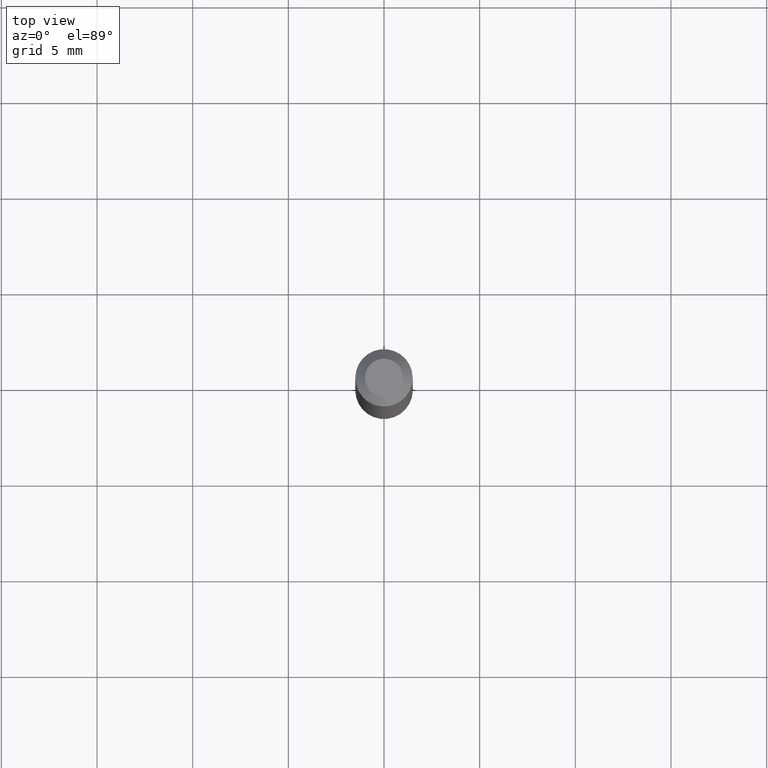
[diagram: clean part render]
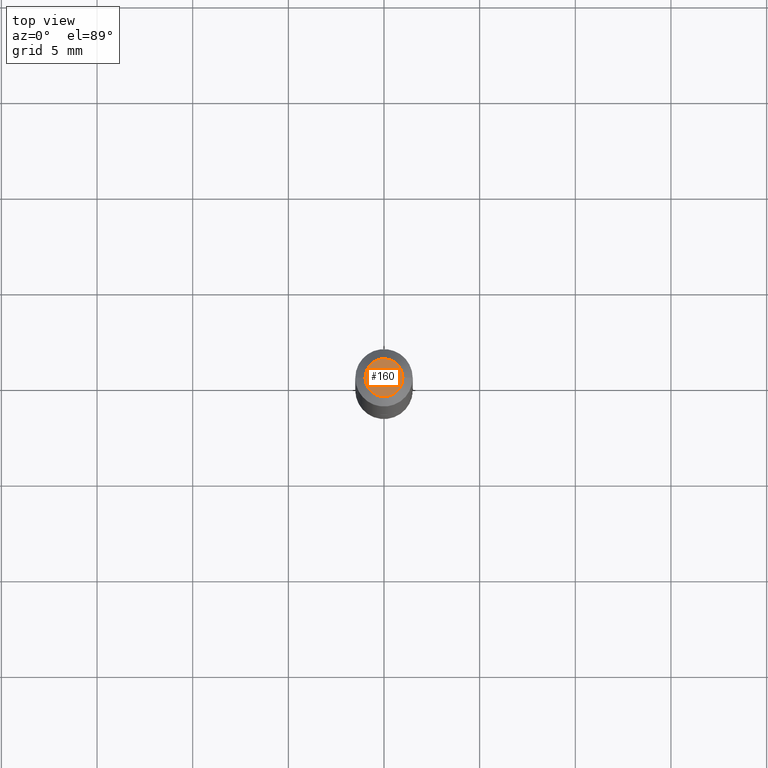
[diagram: same view with one face highlighted and labeled with its STEP entity id]
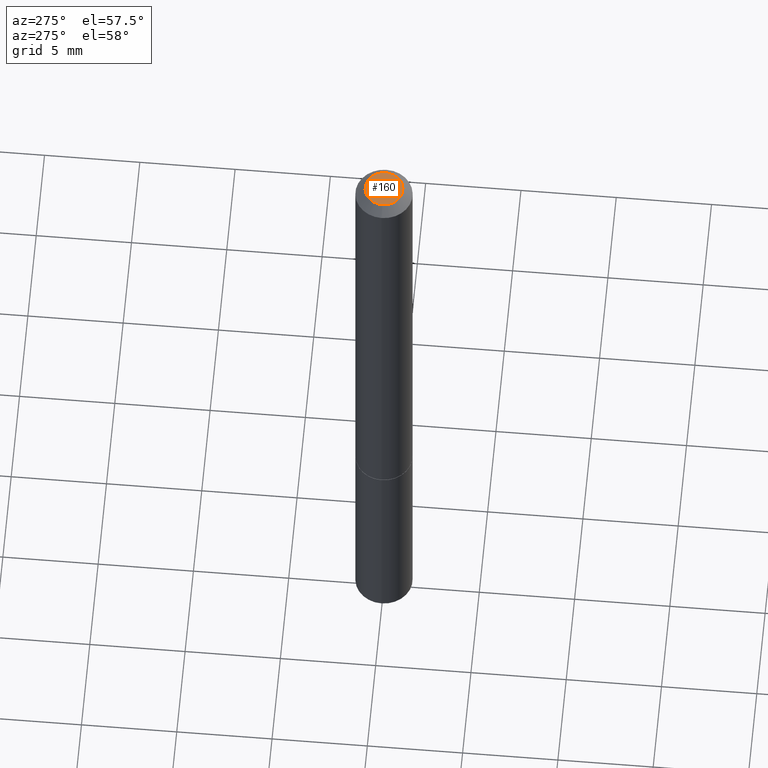
[diagram: same view with one face highlighted and labeled with its STEP entity id]
A machine part, top view. The second image highlights one B-rep face of the part: STEP entity #160.
A second angle (auxiliary view) of the same face is appended — the face is thin or edge-on in the first view.
In plain terms, the highlighted planar face has unit normal (0, -0, -1).
Its self-contained STEP definition (entity closure, byte-faithful):
#29 = CARTESIAN_POINT ( 'NONE',  ( -0.03904999999999982097, 3.075995059520783951E-16, -5.549066237130737733E-17 ) ) ;
#34 = DIRECTION ( 'NONE',  ( -1.000000000000000000, 6.982962677686265922E-15, -4.876176775795935793E-29 ) ) ;
#40 = VERTEX_POINT ( 'NONE', #118 ) ;
#55 = CARTESIAN_POINT ( 'NONE',  ( 1.357006838635785746E-45, -1.937446121494581442E-31, -5.549066237130534971E-17 ) ) ;
#58 = AXIS2_PLACEMENT_3D ( 'NONE', #62, #284, #34 ) ;
#62 = CARTESIAN_POINT ( 'NONE',  ( 2.726846925636474363E-16, 0.03904999999999982097, -1.640876774674768860E-16 ) ) ;
#73 = CIRCLE ( 'NONE', #127, 0.03904999999999982097 ) ;
#89 = CARTESIAN_POINT ( 'NONE',  ( 1.357006838635785746E-45, -1.937446121494581442E-31, -5.549066237130534971E-17 ) ) ;
#94 = EDGE_LOOP ( 'NONE', ( #116, #125 ) ) ;
#116 = ORIENTED_EDGE ( 'NONE', *, *, #302, .T. ) ;
#118 = CARTESIAN_POINT ( 'NONE',  ( 0.03904999999999982097, -3.714222401791240519E-16, -5.549066237130309406E-17 ) ) ;
#125 = ORIENTED_EDGE ( 'NONE', *, *, #218, .T. ) ;
#127 = AXIS2_PLACEMENT_3D ( 'NONE', #55, #281, #133 ) ;
#133 = DIRECTION ( 'NONE',  ( 1.000000000000000000, -6.982962677686265922E-15, 4.873707401586885104E-29 ) ) ;
#160 = ADVANCED_FACE ( 'NONE', ( #191 ), #195, .F. ) ;
#165 = AXIS2_PLACEMENT_3D ( 'NONE', #89, #298, #231 ) ;
#166 = VERTEX_POINT ( 'NONE', #29 ) ;
#191 = FACE_OUTER_BOUND ( 'NONE', #94, .T. ) ;
#195 = PLANE ( 'NONE',  #58 ) ;
#218 = EDGE_CURVE ( 'NONE', #40, #166, #73, .T. ) ;
#231 = DIRECTION ( 'NONE',  ( 1.000000000000000000, -6.982962677686265922E-15, 4.873707401586885104E-29 ) ) ;
#281 = DIRECTION ( 'NONE',  ( -2.445468806185136597E-29, 3.491481338843145583E-15, 1.000000000000000000 ) ) ;
#284 = DIRECTION ( 'NONE',  ( 2.438088387897960049E-29, -3.491481338843145188E-15, -1.000000000000000000 ) ) ;
#298 = DIRECTION ( 'NONE',  ( -2.445468806185136597E-29, 3.491481338843145583E-15, 1.000000000000000000 ) ) ;
#302 = EDGE_CURVE ( 'NONE', #166, #40, #340, .T. ) ;
#340 = CIRCLE ( 'NONE', #165, 0.03904999999999982097 ) ;